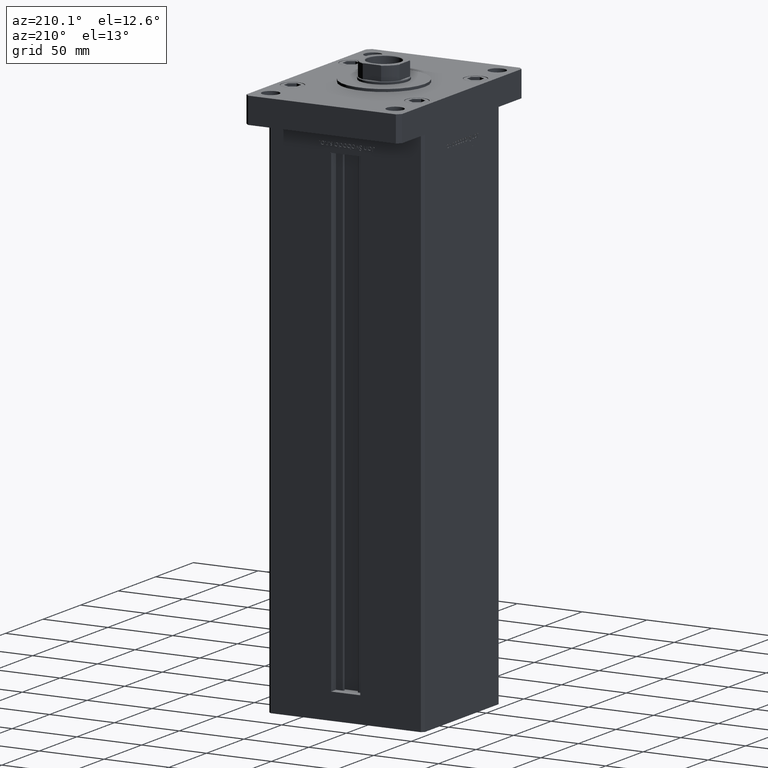
[diagram: clean part render]
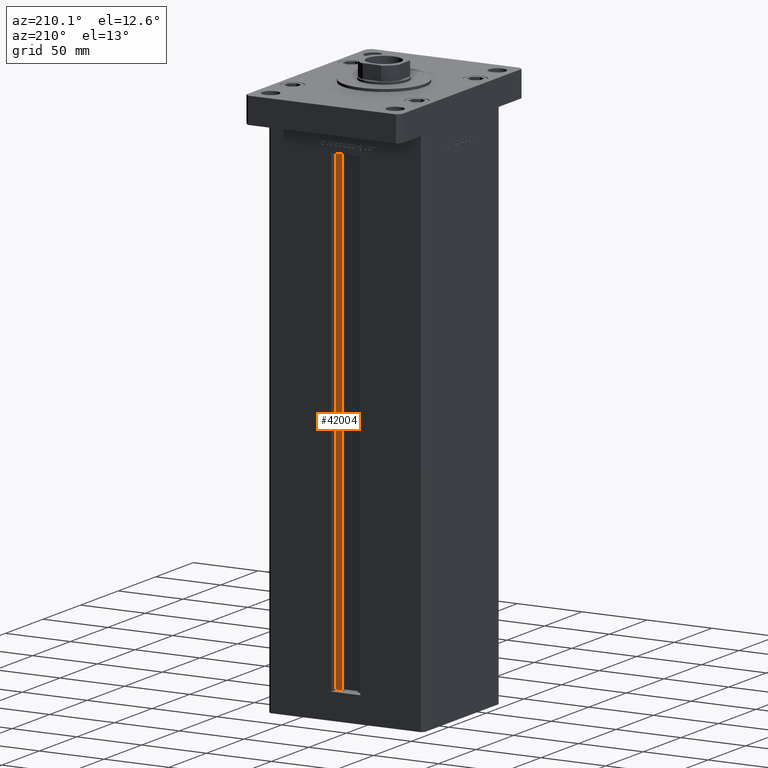
[diagram: same view with one face highlighted and labeled with its STEP entity id]
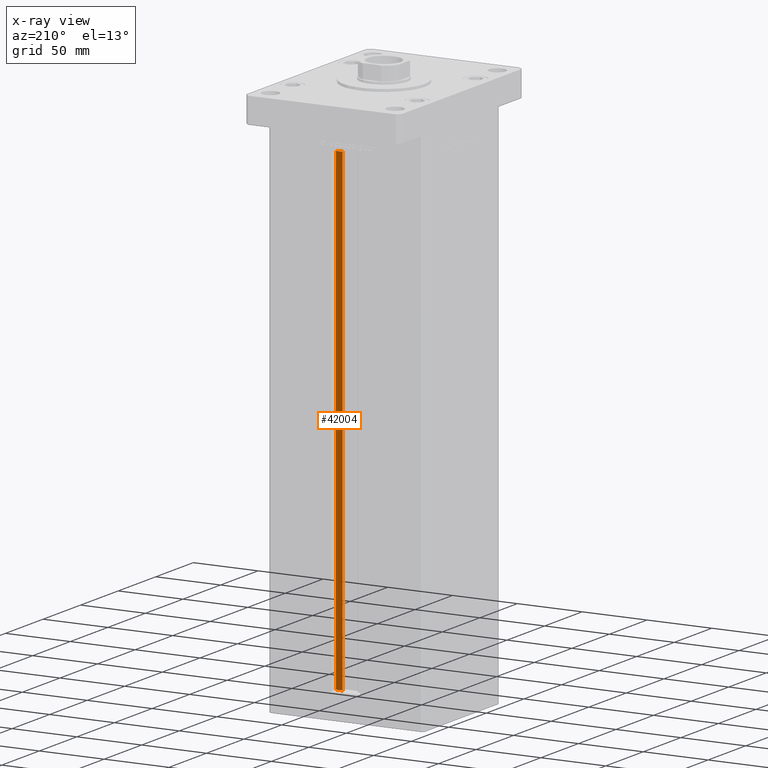
[diagram: x-ray of the same camera — body ghosted, the highlighted face saturated]
A machine part, auxiliary view. The second image highlights one B-rep face of the part: STEP entity #42004.
The next image is the same camera in x-ray: the body ghosted, the highlighted face saturated — about 0% of this face is hidden behind the body in this view.
In plain terms, the highlighted planar face has unit normal (0, -1, 0).
Its self-contained STEP definition (entity closure, byte-faithful):
#5388 = CARTESIAN_POINT ( 'NONE',  ( 6.183333333334001480, 44.50000000000000000, 0.000000000000000000 ) ) ;
#7067 = EDGE_CURVE ( 'NONE', #23530, #8600, #32845, .T. ) ;
#8600 = VERTEX_POINT ( 'NONE', #22357 ) ;
#8924 = DIRECTION ( 'NONE',  ( 0.000000000000000000, -0.000000000000000000, -1.000000000000000000 ) ) ;
#10620 = ORIENTED_EDGE ( 'NONE', *, *, #46672, .F. ) ;
#16820 = PLANE ( 'NONE',  #20189 ) ;
#17084 = DIRECTION ( 'NONE',  ( 0.000000000000000000, -1.000000000000000000, 0.000000000000000000 ) ) ;
#20189 = AXIS2_PLACEMENT_3D ( 'NONE', #5388, #17084, #8924 ) ;
#21243 = DIRECTION ( 'NONE',  ( -0.000000000000000000, -0.000000000000000000, 1.000000000000000000 ) ) ;
#22357 = CARTESIAN_POINT ( 'NONE',  ( 6.183333333334001480, 44.50000000000000000, 368.5000000000000000 ) ) ;
#23067 = CARTESIAN_POINT ( 'NONE',  ( 11.25000000000000178, 44.50000000000000000, 368.5000000000000000 ) ) ;
#23463 = VECTOR ( 'NONE', #24697, 1000.000000000000000 ) ;
#23491 = VECTOR ( 'NONE', #45774, 1000.000000000000000 ) ;
#23530 = VERTEX_POINT ( 'NONE', #23067 ) ;
#24697 = DIRECTION ( 'NONE',  ( -1.000000000000000000, 0.000000000000000000, 0.000000000000000000 ) ) ;
#25779 = FACE_OUTER_BOUND ( 'NONE', #35766, .T. ) ;
#27020 = VECTOR ( 'NONE', #53140, 1000.000000000000000 ) ;
#29167 = CARTESIAN_POINT ( 'NONE',  ( 6.183333333334001480, 44.50000000000000000, 0.000000000000000000 ) ) ;
#29655 = LINE ( 'NONE', #39388, #32458 ) ;
#31139 = CARTESIAN_POINT ( 'NONE',  ( 6.183333333334001480, 44.50000000000000000, 0.000000000000000000 ) ) ;
#32458 = VECTOR ( 'NONE', #21243, 1000.000000000000000 ) ;
#32679 = ORIENTED_EDGE ( 'NONE', *, *, #38734, .F. ) ;
#32845 = LINE ( 'NONE', #37741, #23463 ) ;
#33790 = VERTEX_POINT ( 'NONE', #31139 ) ;
#35766 = EDGE_LOOP ( 'NONE', ( #10620, #32679, #53038, #45999 ) ) ;
#36260 = LINE ( 'NONE', #29167, #23491 ) ;
#37741 = CARTESIAN_POINT ( 'NONE',  ( 0.000000000000000000, 44.50000000000000000, 368.5000000000000000 ) ) ;
#37888 = EDGE_CURVE ( 'NONE', #33790, #8600, #36260, .T. ) ;
#38734 = EDGE_CURVE ( 'NONE', #33790, #46747, #41698, .T. ) ;
#39388 = CARTESIAN_POINT ( 'NONE',  ( 11.25000000000000178, 44.50000000000000000, 0.000000000000000000 ) ) ;
#41698 = LINE ( 'NONE', #53665, #27020 ) ;
#42004 = ADVANCED_FACE ( 'NONE', ( #25779 ), #16820, .F. ) ;
#45774 = DIRECTION ( 'NONE',  ( -0.000000000000000000, -0.000000000000000000, 1.000000000000000000 ) ) ;
#45999 = ORIENTED_EDGE ( 'NONE', *, *, #7067, .F. ) ;
#46672 = EDGE_CURVE ( 'NONE', #46747, #23530, #29655, .T. ) ;
#46747 = VERTEX_POINT ( 'NONE', #48091 ) ;
#48091 = CARTESIAN_POINT ( 'NONE',  ( 11.25000000000000178, 44.50000000000000000, 0.000000000000000000 ) ) ;
#53038 = ORIENTED_EDGE ( 'NONE', *, *, #37888, .T. ) ;
#53140 = DIRECTION ( 'NONE',  ( 1.000000000000000000, 0.000000000000000000, 0.000000000000000000 ) ) ;
#53665 = CARTESIAN_POINT ( 'NONE',  ( 6.183333333334001480, 44.50000000000000000, 0.000000000000000000 ) ) ;